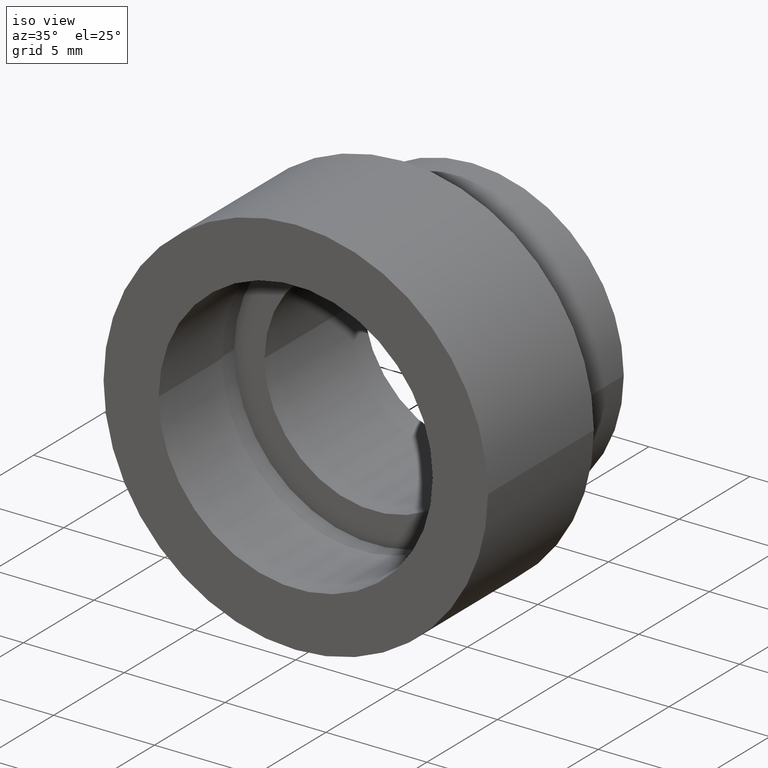
[diagram: clean part render]
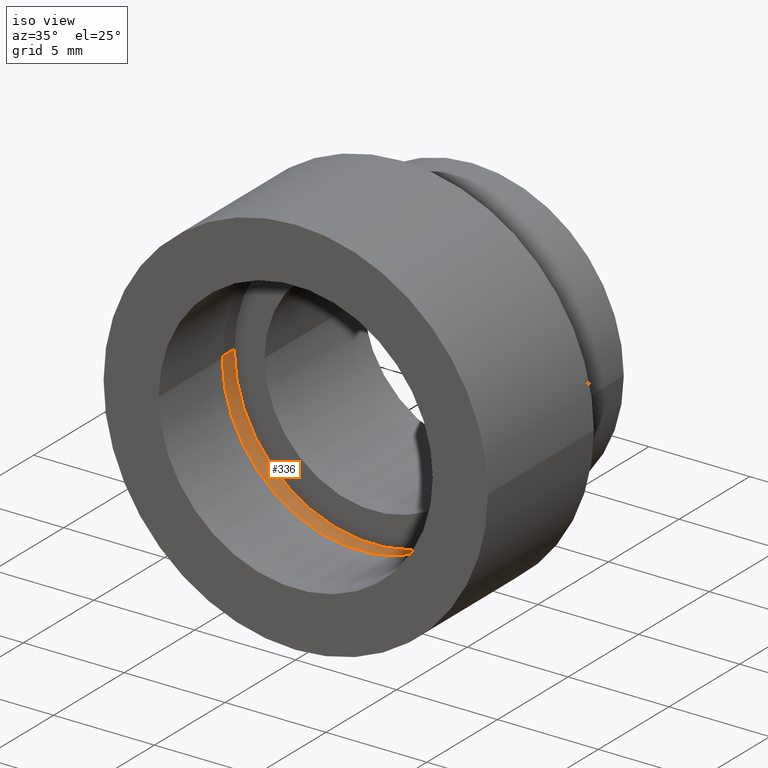
[diagram: same view with one face highlighted and labeled with its STEP entity id]
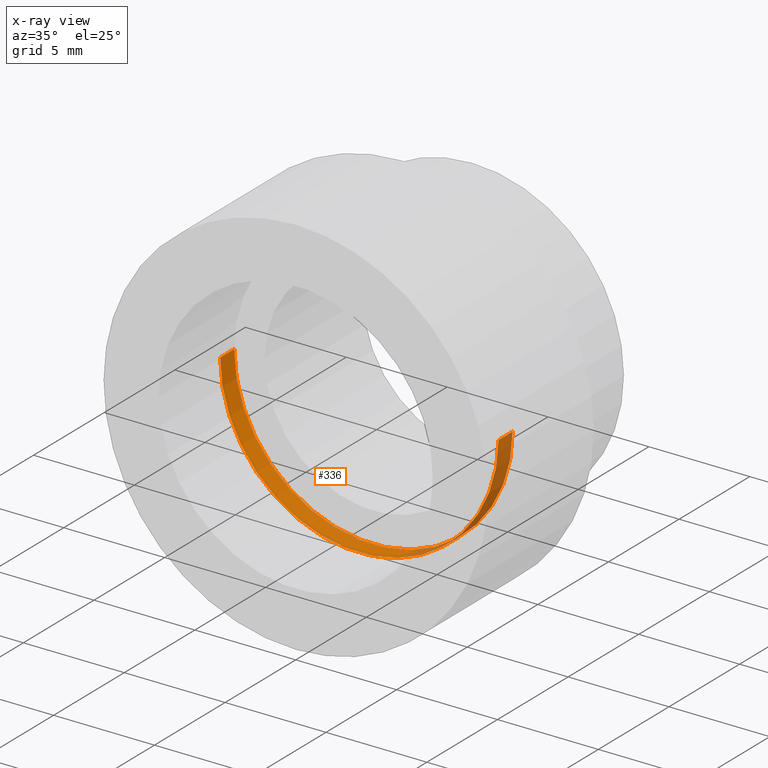
[diagram: x-ray of the same camera — body ghosted, the highlighted face saturated]
A machine part, iso view. The second image highlights one B-rep face of the part: STEP entity #336.
The next image is the same camera in x-ray: the body ghosted, the highlighted face saturated — about 22% of this face is hidden behind the body in this view.
In plain terms, the highlighted cylindrical surface (partial cylindrical patch) has radius 6.9 mm, axis along (-0, 1, -0).
Its self-contained STEP definition (entity closure, byte-faithful):
#10 = LINE ( 'NONE', #88, #320 ) ;
#48 = EDGE_CURVE ( 'NONE', #308, #314, #298, .T. ) ;
#70 = DIRECTION ( 'NONE',  ( -1.000000000000000000, 0.0000000000000000000, 0.0000000000000000000 ) ) ;
#88 = CARTESIAN_POINT ( 'NONE',  ( -6.900000000000000400, 16.88601823708207700, 0.0000000000000000000 ) ) ;
#94 = CYLINDRICAL_SURFACE ( 'NONE', #119, 6.900000000000000400 ) ;
#116 = FACE_OUTER_BOUND ( 'NONE', #339, .T. ) ;
#119 = AXIS2_PLACEMENT_3D ( 'NONE', #123, #448, #70 ) ;
#123 = CARTESIAN_POINT ( 'NONE',  ( 0.0000000000000000000, 16.88601823708207700, 0.0000000000000000000 ) ) ;
#153 = ORIENTED_EDGE ( 'NONE', *, *, #591, .T. ) ;
#156 = CARTESIAN_POINT ( 'NONE',  ( 1.394385078907593000E-015, 5.499999999999998200, 0.0000000000000000000 ) ) ;
#164 = EDGE_CURVE ( 'NONE', #333, #454, #568, .T. ) ;
#180 = DIRECTION ( 'NONE',  ( -1.224646799147351000E-016, 1.000000000000000000, -0.0000000000000000000 ) ) ;
#198 = VECTOR ( 'NONE', #563, 1000.000000000000000 ) ;
#219 = CARTESIAN_POINT ( 'NONE',  ( -6.899999999999998600, 4.499999999999996400, 0.0000000000000000000 ) ) ;
#250 = AXIS2_PLACEMENT_3D ( 'NONE', #156, #588, #295 ) ;
#294 = CARTESIAN_POINT ( 'NONE',  ( 1.516849758822328300E-015, 4.499999999999997300, 0.0000000000000000000 ) ) ;
#295 = DIRECTION ( 'NONE',  ( -1.000000000000000000, -1.257045997084642900E-016, 0.0000000000000000000 ) ) ;
#298 = CIRCLE ( 'NONE', #250, 6.900000000000000400 ) ;
#308 = VERTEX_POINT ( 'NONE', #490 ) ;
#310 = CARTESIAN_POINT ( 'NONE',  ( -6.899999999999998600, 5.499999999999997300, 0.0000000000000000000 ) ) ;
#314 = VERTEX_POINT ( 'NONE', #310 ) ;
#320 = VECTOR ( 'NONE', #180, 1000.000000000000000 ) ;
#333 = VERTEX_POINT ( 'NONE', #450 ) ;
#336 = ADVANCED_FACE ( 'NONE', ( #116 ), #94, .F. ) ;
#339 = EDGE_LOOP ( 'NONE', ( #603, #153, #459, #395 ) ) ;
#390 = AXIS2_PLACEMENT_3D ( 'NONE', #294, #436, #532 ) ;
#395 = ORIENTED_EDGE ( 'NONE', *, *, #517, .F. ) ;
#436 = DIRECTION ( 'NONE',  ( -1.224646799147351000E-016, 1.000000000000000000, -0.0000000000000000000 ) ) ;
#448 = DIRECTION ( 'NONE',  ( -1.224646799147351000E-016, 1.000000000000000000, -0.0000000000000000000 ) ) ;
#450 = CARTESIAN_POINT ( 'NONE',  ( 6.900000000000002100, 4.499999999999998200, 8.450062914116737600E-016 ) ) ;
#454 = VERTEX_POINT ( 'NONE', #219 ) ;
#459 = ORIENTED_EDGE ( 'NONE', *, *, #48, .T. ) ;
#490 = CARTESIAN_POINT ( 'NONE',  ( 6.900000000000002100, 5.499999999999999100, 8.450062914116737600E-016 ) ) ;
#494 = LINE ( 'NONE', #615, #198 ) ;
#517 = EDGE_CURVE ( 'NONE', #454, #314, #10, .T. ) ;
#532 = DIRECTION ( 'NONE',  ( -1.000000000000000000, -1.257045997084642900E-016, 0.0000000000000000000 ) ) ;
#563 = DIRECTION ( 'NONE',  ( -1.224646799147351000E-016, 1.000000000000000000, -0.0000000000000000000 ) ) ;
#568 = CIRCLE ( 'NONE', #390, 6.900000000000000400 ) ;
#588 = DIRECTION ( 'NONE',  ( -1.224646799147351000E-016, 1.000000000000000000, -0.0000000000000000000 ) ) ;
#591 = EDGE_CURVE ( 'NONE', #333, #308, #494, .T. ) ;
#603 = ORIENTED_EDGE ( 'NONE', *, *, #164, .F. ) ;
#615 = CARTESIAN_POINT ( 'NONE',  ( 6.900000000000000400, 16.88601823708207700, 8.450062914116737600E-016 ) ) ;